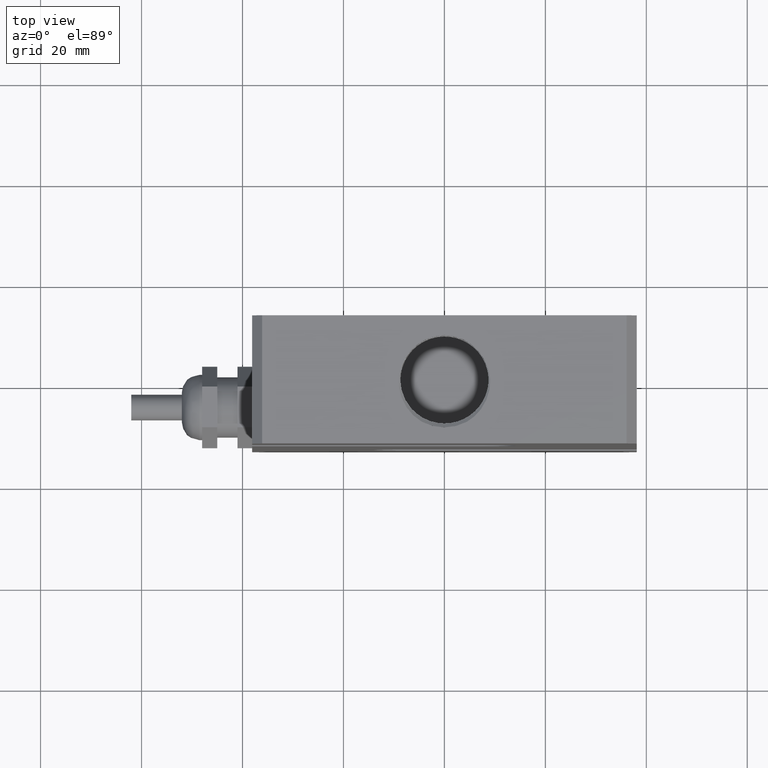
[diagram: clean part render]
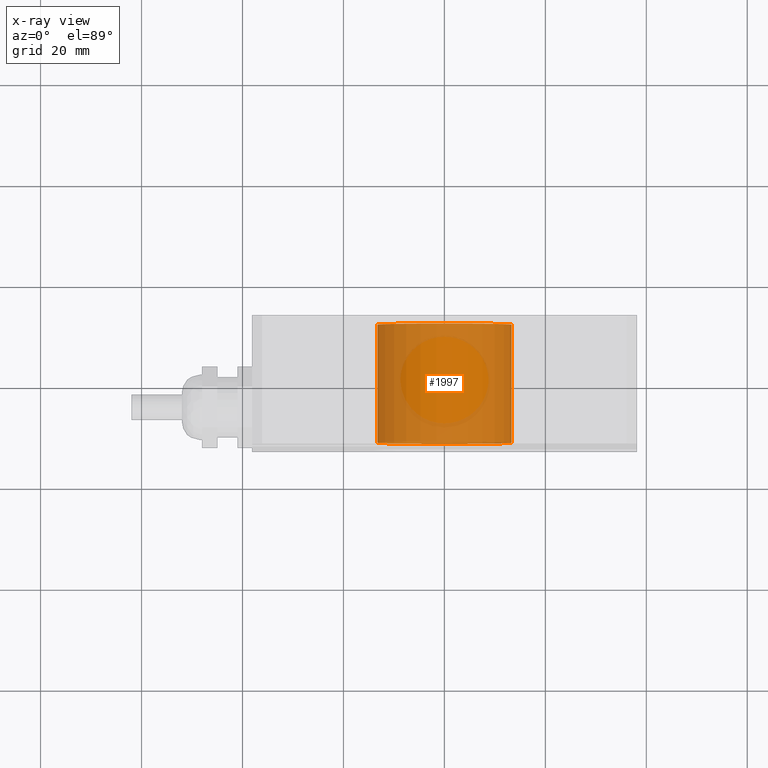
[diagram: x-ray — body ghosted, one internal face saturated and labeled with its STEP entity id]
A machine part, top view, then the same camera in x-ray: the body is ghosted and one INTERNAL B-rep face — a face not visible from any outside direction — is saturated and labeled: STEP entity #1997.
In plain terms, the highlighted cylindrical surface (bore or boss wall) has radius 13.3 mm, axis along (0, 1, 0).
Its self-contained STEP definition (entity closure, byte-faithful):
#235=FACE_OUTER_BOUND('',#357,.T.);
#357=EDGE_LOOP('',(#1398,#1399,#1400,#1401,#1402,#1403));
#491=LINE('',#2854,#637);
#637=VECTOR('',#2386,13.3);
#754=CIRCLE('',#2142,13.3);
#755=CIRCLE('',#2143,13.3);
#756=CIRCLE('',#2145,13.3);
#757=CIRCLE('',#2146,13.3);
#814=VERTEX_POINT('',#2844);
#815=VERTEX_POINT('',#2845);
#816=VERTEX_POINT('',#2849);
#817=VERTEX_POINT('',#2850);
#1035=EDGE_CURVE('',#814,#815,#754,.T.);
#1036=EDGE_CURVE('',#815,#814,#755,.T.);
#1037=EDGE_CURVE('',#816,#817,#756,.T.);
#1038=EDGE_CURVE('',#817,#816,#757,.T.);
#1039=EDGE_CURVE('',#817,#815,#491,.T.);
#1398=ORIENTED_EDGE('',*,*,#1037,.T.);
#1399=ORIENTED_EDGE('',*,*,#1039,.T.);
#1400=ORIENTED_EDGE('',*,*,#1036,.T.);
#1401=ORIENTED_EDGE('',*,*,#1035,.T.);
#1402=ORIENTED_EDGE('',*,*,#1039,.F.);
#1403=ORIENTED_EDGE('',*,*,#1038,.T.);
#1905=CYLINDRICAL_SURFACE('',#2147,13.3);
#1997=ADVANCED_FACE('',(#235),#1905,.F.);
#2142=AXIS2_PLACEMENT_3D('',#2846,#2374,#2375);
#2143=AXIS2_PLACEMENT_3D('',#2847,#2376,#2377);
#2145=AXIS2_PLACEMENT_3D('',#2851,#2380,#2381);
#2146=AXIS2_PLACEMENT_3D('',#2852,#2382,#2383);
#2147=AXIS2_PLACEMENT_3D('',#2853,#2384,#2385);
#2374=DIRECTION('center_axis',(0.,-1.,0.));
#2375=DIRECTION('ref_axis',(1.,0.,0.));
#2376=DIRECTION('center_axis',(0.,-1.,0.));
#2377=DIRECTION('ref_axis',(1.,0.,0.));
#2380=DIRECTION('center_axis',(0.,1.,0.));
#2381=DIRECTION('ref_axis',(1.,0.,0.));
#2382=DIRECTION('center_axis',(0.,1.,0.));
#2383=DIRECTION('ref_axis',(1.,0.,0.));
#2384=DIRECTION('center_axis',(0.,1.,0.));
#2385=DIRECTION('ref_axis',(1.,0.,0.));
#2386=DIRECTION('',(0.,-1.,0.));
#2844=CARTESIAN_POINT('',(13.3,-11.7,-1.62878024286598E-15));
#2845=CARTESIAN_POINT('',(-13.3,-11.7,1.62878024286598E-15));
#2846=CARTESIAN_POINT('Origin',(0.,-11.7,0.));
#2847=CARTESIAN_POINT('Origin',(0.,-11.7,0.));
#2849=CARTESIAN_POINT('',(13.3,11.7,-1.62878024286598E-15));
#2850=CARTESIAN_POINT('',(-13.3,11.7,1.62878024286598E-15));
#2851=CARTESIAN_POINT('Origin',(0.,11.7,0.));
#2852=CARTESIAN_POINT('Origin',(0.,11.7,0.));
#2853=CARTESIAN_POINT('Origin',(0.,0.,0.));
#2854=CARTESIAN_POINT('',(-13.3,0.,1.62878024286598E-15));